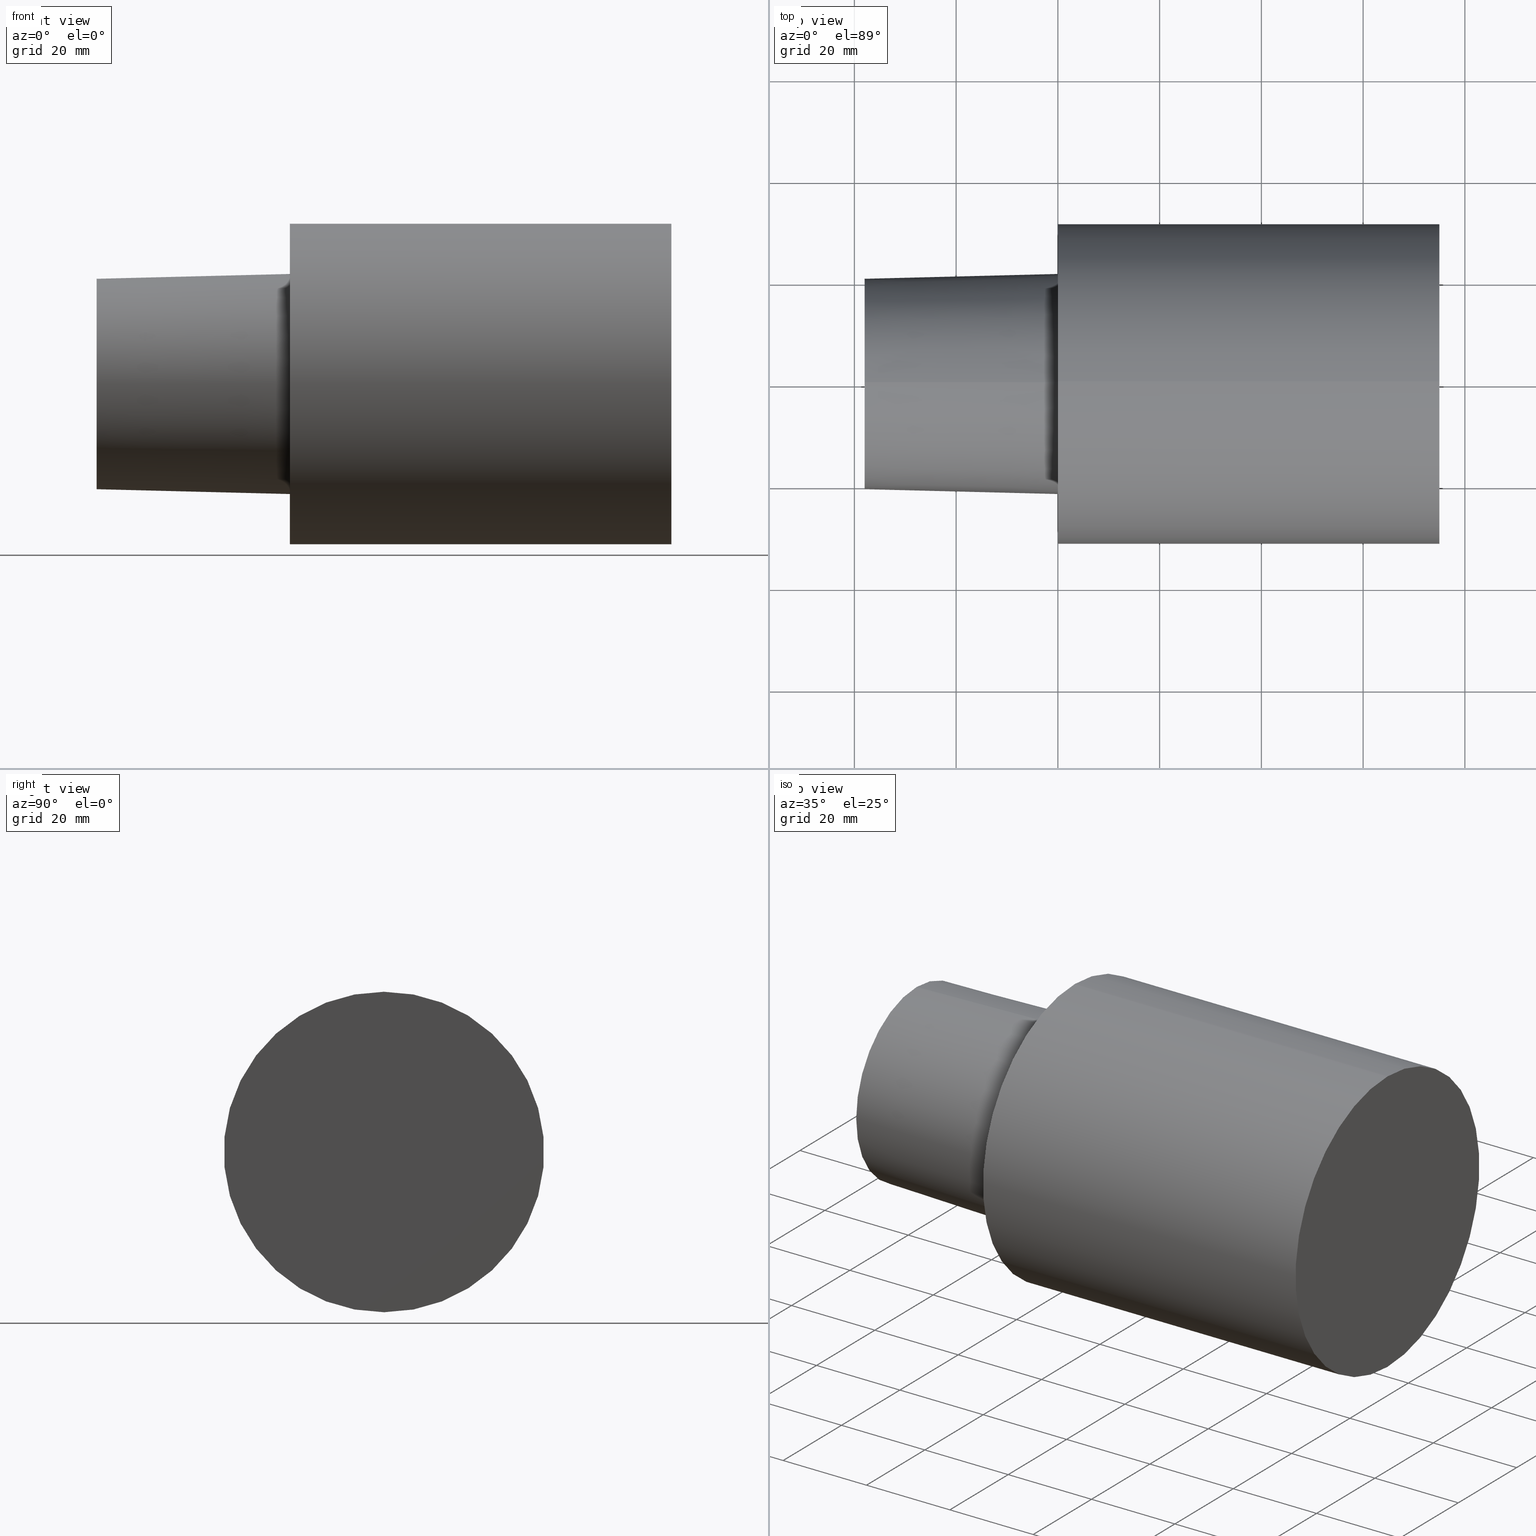
[diagram: canonical four-view strip — front | top / right | iso, engineering-drawing reading convention]
A machine part, canonical four-view strip (front | top / right | iso — engineering-drawing reading convention). The complete STEP part file that produces these views, byte-faithful:
ISO-10303-21;
HEADER;
FILE_DESCRIPTION (( 'STEP AP203' ),
    '1' );
FILE_NAME ('C6-F63-75.stp',
    '2022-03-11T15:30:43',
    ( '' ),
    ( '' ),
    'SwSTEP 2.0',
    'SolidWorks 2021',
    '' );
FILE_SCHEMA (( 'CONFIG_CONTROL_DESIGN' ));
ENDSEC;

DATA;
#1 = PLANE ( 'NONE',  #87 ) ;
#2 = DIRECTION ( 'NONE',  ( -1.000000000000000000, 0.000000000000000000, 0.000000000000000000 ) ) ;
#3 = AXIS2_PLACEMENT_3D ( 'NONE', #57, #2, #179 ) ;
#4 = APPROVAL_PERSON_ORGANIZATION ( #247, #237, #167 ) ;
#5 = DIRECTION ( 'NONE',  ( 0.000000000000000000, 0.000000000000000000, 1.000000000000000000 ) ) ;
#6 =( NAMED_UNIT ( * ) PLANE_ANGLE_UNIT ( ) SI_UNIT ( $, .RADIAN. ) );
#7 = CARTESIAN_POINT ( 'NONE',  ( -37.99999996124000035, 0.000000000000000000, 0.000000000000000000 ) ) ;
#8 = AXIS2_PLACEMENT_3D ( 'NONE', #176, #130, #236 ) ;
#9 = CARTESIAN_POINT ( 'NONE',  ( 74.99999992349999900, 0.000000000000000000, 31.49999996787000001 ) ) ;
#10 = APPROVAL_PERSON_ORGANIZATION ( #137, #125, #217 ) ;
#11 = DIRECTION ( 'NONE',  ( -1.000000000000000000, 0.000000000000000000, 0.000000000000000000 ) ) ;
#12 = EDGE_LOOP ( 'NONE', ( #73, #96, #190, #225 ) ) ;
#13 = EDGE_LOOP ( 'NONE', ( #126, #184 ) ) ;
#14 = COORDINATED_UNIVERSAL_TIME_OFFSET ( 6, 0, .BEHIND. ) ;
#15 = AXIS2_PLACEMENT_3D ( 'NONE', #101, #194, #216 ) ;
#16 = ORIENTED_EDGE ( 'NONE', *, *, #199, .F. ) ;
#17 = EDGE_CURVE ( 'NONE', #248, #69, #107, .T. ) ;
#18 = DESIGN_CONTEXT ( 'detailed design', #152, 'design' ) ;
#19 = DIRECTION ( 'NONE',  ( -1.000000000000000000, 0.000000000000000000, 0.000000000000000000 ) ) ;
#20 = DIRECTION ( 'NONE',  ( -1.000000000000000000, 0.000000000000000000, 0.000000000000000000 ) ) ;
#21 = LINE ( 'NONE', #100, #189 ) ;
#22 = FACE_BOUND ( 'NONE', #13, .T. ) ;
#23 = DIRECTION ( 'NONE',  ( -1.000000000000000000, 0.000000000000000000, 0.000000000000000000 ) ) ;
#24 = CC_DESIGN_DATE_AND_TIME_ASSIGNMENT ( #181, #203, ( #157 ) ) ;
#25 =( GEOMETRIC_REPRESENTATION_CONTEXT ( 3 ) GLOBAL_UNCERTAINTY_ASSIGNED_CONTEXT ( ( #80 ) ) GLOBAL_UNIT_ASSIGNED_CONTEXT ( ( #238, #6, #200 ) ) REPRESENTATION_CONTEXT ( 'NONE', 'WORKASPACE' ) );
#26 = DIRECTION ( 'NONE',  ( 1.000000000000000000, 0.000000000000000000, 0.000000000000000000 ) ) ;
#27 = ADVANCED_BREP_SHAPE_REPRESENTATION ( 'C6-F63-75', ( #232, #165 ), #25 ) ;
#28 = CALENDAR_DATE ( 2022, 11, 3 ) ;
#29 = CIRCLE ( 'NONE', #38, 31.49999996787000001 ) ;
#30 = CC_DESIGN_PERSON_AND_ORGANIZATION_ASSIGNMENT ( #141, #45, ( #95 ) ) ;
#31 = CARTESIAN_POINT ( 'NONE',  ( -37.99999996124000035, 0.000000000000000000, 0.000000000000000000 ) ) ;
#32 = VERTEX_POINT ( 'NONE', #88 ) ;
#33 = ADVANCED_FACE ( 'NONE', ( #246 ), #224, .T. ) ;
#34 = ORIENTED_EDGE ( 'NONE', *, *, #41, .F. ) ;
#35 = CARTESIAN_POINT ( 'NONE',  ( 0.000000000000000000, 0.000000000000000000, 0.000000000000000000 ) ) ;
#36 = DIRECTION ( 'NONE',  ( 1.000000000000000000, 0.000000000000000000, 0.000000000000000000 ) ) ;
#37 = DIRECTION ( 'NONE',  ( 0.000000000000000000, 0.000000000000000000, 1.000000000000000000 ) ) ;
#38 = AXIS2_PLACEMENT_3D ( 'NONE', #35, #102, #171 ) ;
#39 = DIRECTION ( 'NONE',  ( -1.000000000000000000, 0.000000000000000000, 0.000000000000000000 ) ) ;
#40 = DIRECTION ( 'NONE',  ( 0.000000000000000000, 0.000000000000000000, 1.000000000000000000 ) ) ;
#41 = EDGE_CURVE ( 'NONE', #209, #32, #56, .T. ) ;
#42 = DATE_AND_TIME ( #182, #173 ) ;
#43 = CIRCLE ( 'NONE', #252, 21.63061196907898065 ) ;
#44 = DIRECTION ( 'NONE',  ( 0.000000000000000000, 0.000000000000000000, 1.000000000000000000 ) ) ;
#45 = PERSON_AND_ORGANIZATION_ROLE ( 'classification_officer' ) ;
#46 = CALENDAR_DATE ( 2022, 11, 3 ) ;
#47 = AXIS2_PLACEMENT_3D ( 'NONE', #230, #192, #213 ) ;
#48 = ADVANCED_FACE ( 'NONE', ( #22, #75 ), #118, .F. ) ;
#49 = ORIENTED_EDGE ( 'NONE', *, *, #112, .T. ) ;
#50 = ORIENTED_EDGE ( 'NONE', *, *, #222, .T. ) ;
#51 = AXIS2_PLACEMENT_3D ( 'NONE', #117, #39, #5 ) ;
#52 = CC_DESIGN_SECURITY_CLASSIFICATION ( #95, ( #84 ) ) ;
#53 = ORIENTED_EDGE ( 'NONE', *, *, #144, .F. ) ;
#54 = CARTESIAN_POINT ( 'NONE',  ( 0.000000000000000000, 0.000000000000000000, 0.000000000000000000 ) ) ;
#55 = PRODUCT_RELATED_PRODUCT_CATEGORY ( 'detail', '', ( #205 ) ) ;
#56 = LINE ( 'NONE', #251, #59 ) ;
#57 = CARTESIAN_POINT ( 'NONE',  ( -37.99999996124000035, 0.000000000000000000, 0.000000000000000000 ) ) ;
#58 = DIRECTION ( 'NONE',  ( -1.000000000000000000, 0.000000000000000000, 0.000000000000000000 ) ) ;
#59 = VECTOR ( 'NONE', #23, 1000.000000000000000 ) ;
#60 = DIRECTION ( 'NONE',  ( 0.000000000000000000, 0.000000000000000000, 1.000000000000000000 ) ) ;
#61 = PERSON_AND_ORGANIZATION_ROLE ( 'design_owner' ) ;
#62 = MECHANICAL_CONTEXT ( 'NONE', #138, 'mechanical' ) ;
#63 = AXIS2_PLACEMENT_3D ( 'NONE', #153, #36, #99 ) ;
#64 = CALENDAR_DATE ( 2022, 11, 3 ) ;
#65 = SECURITY_CLASSIFICATION_LEVEL ( 'unclassified' ) ;
#66 = APPROVAL_DATE_TIME ( #158, #68 ) ;
#67 = CONICAL_SURFACE ( 'NONE', #185, 21.63061196907898065, 0.02499698951949481940 ) ;
#68 = APPROVAL ( #85, 'UNSPECIFIED' ) ;
#69 = VERTEX_POINT ( 'NONE', #154 ) ;
#70 = ORIENTED_EDGE ( 'NONE', *, *, #177, .T. ) ;
#71 = ADVANCED_FACE ( 'NONE', ( #114 ), #202, .T. ) ;
#72 = EDGE_LOOP ( 'NONE', ( #53, #149 ) ) ;
#73 = ORIENTED_EDGE ( 'NONE', *, *, #249, .F. ) ;
#74 = PLANE ( 'NONE',  #15 ) ;
#75 = FACE_OUTER_BOUND ( 'NONE', #211, .T. ) ;
#76 = DIRECTION ( 'NONE',  ( -1.000000000000000000, 0.000000000000000000, 0.000000000000000000 ) ) ;
#77 = ADVANCED_FACE ( 'NONE', ( #131 ), #214, .T. ) ;
#78 = FACE_OUTER_BOUND ( 'NONE', #12, .T. ) ;
#79 = AXIS2_PLACEMENT_3D ( 'NONE', #31, #188, #151 ) ;
#80 = UNCERTAINTY_MEASURE_WITH_UNIT (LENGTH_MEASURE( 1.000000000000000082E-05 ), #238, 'distance_accuracy_value', 'NONE');
#81 = PERSON_AND_ORGANIZATION ( #145, #140 ) ;
#82 = CC_DESIGN_PERSON_AND_ORGANIZATION_ASSIGNMENT ( #198, #183, ( #84 ) ) ;
#83 = PERSON_AND_ORGANIZATION ( #145, #140 ) ;
#84 = PRODUCT_DEFINITION_FORMATION_WITH_SPECIFIED_SOURCE ( 'ANY', '', #205, .NOT_KNOWN. ) ;
#85 = APPROVAL_STATUS ( 'not_yet_approved' ) ;
#86 = EDGE_CURVE ( 'NONE', #32, #69, #208, .T. ) ;
#87 = AXIS2_PLACEMENT_3D ( 'NONE', #191, #19, #155 ) ;
#88 = CARTESIAN_POINT ( 'NONE',  ( 0.000000000000000000, 3.857637413379370248E-15, -31.49999996787000001 ) ) ;
#89 = APPROVAL_DATE_TIME ( #187, #237 ) ;
#90 = EDGE_CURVE ( 'NONE', #69, #32, #29, .T. ) ;
#91 = EDGE_LOOP ( 'NONE', ( #16, #128, #109, #50 ) ) ;
#92 = SHAPE_DEFINITION_REPRESENTATION ( #186, #27 ) ;
#93 = VERTEX_POINT ( 'NONE', #231 ) ;
#94 = CIRCLE ( 'NONE', #3, 20.68052847366897140 ) ;
#95 = SECURITY_CLASSIFICATION ( '', '', #65 ) ;
#96 = ORIENTED_EDGE ( 'NONE', *, *, #199, .T. ) ;
#97 = DIRECTION ( 'NONE',  ( -1.000000000000000000, 0.000000000000000000, 0.000000000000000000 ) ) ;
#98 = APPROVAL_PERSON_ORGANIZATION ( #105, #68, #103 ) ;
#99 = DIRECTION ( 'NONE',  ( 0.000000000000000000, 0.000000000000000000, -1.000000000000000000 ) ) ;
#100 = CARTESIAN_POINT ( 'NONE',  ( 0.000000000000000000, 2.648985971153096932E-15, 21.63061196907898065 ) ) ;
#101 = CARTESIAN_POINT ( 'NONE',  ( -37.99999996124000035, 20.68052847366897140, 0.000000000000000000 ) ) ;
#102 = DIRECTION ( 'NONE',  ( -1.000000000000000000, 0.000000000000000000, 0.000000000000000000 ) ) ;
#103 = APPROVAL_ROLE ( '' ) ;
#104 = DATE_AND_TIME ( #28, #235 ) ;
#105 = PERSON_AND_ORGANIZATION ( #145, #140 ) ;
#106 = CARTESIAN_POINT ( 'NONE',  ( 0.000000000000000000, 0.000000000000000000, 0.000000000000000000 ) ) ;
#107 = LINE ( 'NONE', #166, #245 ) ;
#108 = CC_DESIGN_PERSON_AND_ORGANIZATION_ASSIGNMENT ( #83, #241, ( #84 ) ) ;
#109 = ORIENTED_EDGE ( 'NONE', *, *, #244, .T. ) ;
#110 = APPROVAL_STATUS ( 'not_yet_approved' ) ;
#111 = VERTEX_POINT ( 'NONE', #156 ) ;
#112 = EDGE_CURVE ( 'NONE', #111, #93, #94, .T. ) ;
#113 = FACE_OUTER_BOUND ( 'NONE', #72, .T. ) ;
#114 = FACE_OUTER_BOUND ( 'NONE', #91, .T. ) ;
#115 = EDGE_CURVE ( 'NONE', #250, #147, #143, .T. ) ;
#116 = AXIS2_PLACEMENT_3D ( 'NONE', #254, #76, #37 ) ;
#117 = CARTESIAN_POINT ( 'NONE',  ( 74.99999992349999900, 0.000000000000000000, 0.000000000000000000 ) ) ;
#118 = PLANE ( 'NONE',  #8 ) ;
#119 = CARTESIAN_POINT ( 'NONE',  ( 0.000000000000000000, 0.000000000000000000, 0.000000000000000000 ) ) ;
#120 = APPROVAL_DATE_TIME ( #42, #125 ) ;
#121 = COORDINATED_UNIVERSAL_TIME_OFFSET ( 6, 0, .BEHIND. ) ;
#122 = COORDINATED_UNIVERSAL_TIME_OFFSET ( 6, 0, .BEHIND. ) ;
#123 = APPROVAL_STATUS ( 'not_yet_approved' ) ;
#124 = ORIENTED_EDGE ( 'NONE', *, *, #90, .F. ) ;
#125 = APPROVAL ( #123, 'UNSPECIFIED' ) ;
#126 = ORIENTED_EDGE ( 'NONE', *, *, #222, .F. ) ;
#127 = CC_DESIGN_APPROVAL ( #68, ( #157 ) ) ;
#128 = ORIENTED_EDGE ( 'NONE', *, *, #112, .F. ) ;
#129 = ORIENTED_EDGE ( 'NONE', *, *, #41, .T. ) ;
#130 = DIRECTION ( 'NONE',  ( 1.000000000000000000, 0.000000000000000000, 0.000000000000000000 ) ) ;
#131 = FACE_OUTER_BOUND ( 'NONE', #226, .T. ) ;
#132 = CC_DESIGN_PERSON_AND_ORGANIZATION_ASSIGNMENT ( #164, #142, ( #157 ) ) ;
#133 = CARTESIAN_POINT ( 'NONE',  ( 0.000000000000000000, 0.000000000000000000, 0.000000000000000000 ) ) ;
#134 = LOCAL_TIME ( 9, 30, 43.00000000000000000, #14 ) ;
#135 = LINE ( 'NONE', #195, #243 ) ;
#136 = FACE_OUTER_BOUND ( 'NONE', #207, .T. ) ;
#137 = PERSON_AND_ORGANIZATION ( #145, #140 ) ;
#138 = APPLICATION_CONTEXT ( 'configuration controlled 3d designs of mechanical parts and assemblies' ) ;
#139 = APPLICATION_PROTOCOL_DEFINITION ( 'international standard', 'config_control_design', 1994, #152 ) ;
#140 = ORGANIZATION ( 'UNSPECIFIED', 'UNSPECIFIED', '' ) ;
#141 = PERSON_AND_ORGANIZATION ( #145, #140 ) ;
#142 = PERSON_AND_ORGANIZATION_ROLE ( 'creator' ) ;
#143 = CIRCLE ( 'NONE', #172, 21.63061196907898065 ) ;
#144 = EDGE_CURVE ( 'NONE', #248, #209, #234, .T. ) ;
#145 = PERSON ( 'UNSPECIFIED', 'UNSPECIFIED', 'UNSPECIFIED', ('UNSPECIFIED'), ('UNSPECIFIED'), ('UNSPECIFIED') ) ;
#146 = ORIENTED_EDGE ( 'NONE', *, *, #86, .F. ) ;
#147 = VERTEX_POINT ( 'NONE', #174 ) ;
#148 = CIRCLE ( 'NONE', #160, 20.68052847366897140 ) ;
#149 = ORIENTED_EDGE ( 'NONE', *, *, #177, .F. ) ;
#150 = ORIENTED_EDGE ( 'NONE', *, *, #86, .T. ) ;
#151 = DIRECTION ( 'NONE',  ( 0.000000000000000000, 0.000000000000000000, 1.000000000000000000 ) ) ;
#152 = APPLICATION_CONTEXT ( 'configuration controlled 3d designs of mechanical parts and assemblies' ) ;
#153 = CARTESIAN_POINT ( 'NONE',  ( 0.000000000000000000, 0.000000000000000000, 0.000000000000000000 ) ) ;
#154 = CARTESIAN_POINT ( 'NONE',  ( 0.000000000000000000, 0.000000000000000000, 31.49999996787000001 ) ) ;
#155 = DIRECTION ( 'NONE',  ( 0.000000000000000000, 0.000000000000000000, 1.000000000000000000 ) ) ;
#156 = CARTESIAN_POINT ( 'NONE',  ( -37.99999996124000035, 0.000000000000000000, -20.68052847366897140 ) ) ;
#157 = PRODUCT_DEFINITION ( 'UNKNOWN', '', #84, #18 ) ;
#158 = DATE_AND_TIME ( #46, #239 ) ;
#159 = DIRECTION ( 'NONE',  ( 0.9996875915253454759, 0.000000000000000000, -0.02499438637482059161 ) ) ;
#160 = AXIS2_PLACEMENT_3D ( 'NONE', #7, #201, #44 ) ;
#161 = DIRECTION ( 'NONE',  ( 0.000000000000000000, 0.000000000000000000, 1.000000000000000000 ) ) ;
#162 = ADVANCED_FACE ( 'NONE', ( #136 ), #74, .F. ) ;
#163 = COORDINATED_UNIVERSAL_TIME_OFFSET ( 6, 0, .BEHIND. ) ;
#164 = PERSON_AND_ORGANIZATION ( #145, #140 ) ;
#165 = AXIS2_PLACEMENT_3D ( 'NONE', #106, #161, #26 ) ;
#166 = CARTESIAN_POINT ( 'NONE',  ( -37.99999996124000035, 0.000000000000000000, 31.49999996787000001 ) ) ;
#167 = APPROVAL_ROLE ( '' ) ;
#168 = ORIENTED_EDGE ( 'NONE', *, *, #90, .T. ) ;
#169 = ORIENTED_EDGE ( 'NONE', *, *, #144, .T. ) ;
#170 = ADVANCED_FACE ( 'NONE', ( #78 ), #67, .T. ) ;
#171 = DIRECTION ( 'NONE',  ( 0.000000000000000000, 0.000000000000000000, 1.000000000000000000 ) ) ;
#172 = AXIS2_PLACEMENT_3D ( 'NONE', #133, #97, #60 ) ;
#173 = LOCAL_TIME ( 9, 30, 43.00000000000000000, #163 ) ;
#174 = CARTESIAN_POINT ( 'NONE',  ( 0.000000000000000000, 0.000000000000000000, -21.63061196907898065 ) ) ;
#175 = DIRECTION ( 'NONE',  ( 0.9996875915253454759, 3.060929527057623083E-18, 0.02499438637482059161 ) ) ;
#176 = CARTESIAN_POINT ( 'NONE',  ( 0.000000000000000000, 31.49999996787000001, 0.000000000000000000 ) ) ;
#177 = EDGE_CURVE ( 'NONE', #209, #248, #178, .T. ) ;
#178 = CIRCLE ( 'NONE', #47, 31.49999996787000001 ) ;
#179 = DIRECTION ( 'NONE',  ( 0.000000000000000000, 0.000000000000000000, 1.000000000000000000 ) ) ;
#180 = CARTESIAN_POINT ( 'NONE',  ( 0.000000000000000000, 2.648985971153096932E-15, 21.63061196907898065 ) ) ;
#181 = DATE_AND_TIME ( #64, #193 ) ;
#182 = CALENDAR_DATE ( 2022, 11, 3 ) ;
#183 = PERSON_AND_ORGANIZATION_ROLE ( 'creator' ) ;
#184 = ORIENTED_EDGE ( 'NONE', *, *, #115, .F. ) ;
#185 = AXIS2_PLACEMENT_3D ( 'NONE', #119, #196, #212 ) ;
#186 = PRODUCT_DEFINITION_SHAPE ( 'NONE', 'NONE',  #157 ) ;
#187 = DATE_AND_TIME ( #227, #134 ) ;
#188 = DIRECTION ( 'NONE',  ( -1.000000000000000000, 0.000000000000000000, 0.000000000000000000 ) ) ;
#189 = VECTOR ( 'NONE', #175, 1000.000000000000114 ) ;
#190 = ORIENTED_EDGE ( 'NONE', *, *, #115, .T. ) ;
#191 = CARTESIAN_POINT ( 'NONE',  ( 74.99999992349999900, 0.000000000000000000, 0.000000000000000000 ) ) ;
#192 = DIRECTION ( 'NONE',  ( -1.000000000000000000, 0.000000000000000000, 0.000000000000000000 ) ) ;
#193 = LOCAL_TIME ( 9, 30, 43.00000000000000000, #121 ) ;
#194 = DIRECTION ( 'NONE',  ( 1.000000000000000000, 0.000000000000000000, 0.000000000000000000 ) ) ;
#195 = CARTESIAN_POINT ( 'NONE',  ( 0.000000000000000000, 0.000000000000000000, -21.63061196907898065 ) ) ;
#196 = DIRECTION ( 'NONE',  ( 1.000000000000000000, 0.000000000000000000, 0.000000000000000000 ) ) ;
#197 = CLOSED_SHELL ( 'NONE', ( #77, #48, #71, #162, #218, #170, #33 ) ) ;
#198 = PERSON_AND_ORGANIZATION ( #145, #140 ) ;
#199 = EDGE_CURVE ( 'NONE', #93, #250, #21, .T. ) ;
#200 =( NAMED_UNIT ( * ) SI_UNIT ( $, .STERADIAN. ) SOLID_ANGLE_UNIT ( ) );
#201 = DIRECTION ( 'NONE',  ( -1.000000000000000000, 0.000000000000000000, 0.000000000000000000 ) ) ;
#202 = CONICAL_SURFACE ( 'NONE', #63, 21.63061196907898065, 0.02499698951949481940 ) ;
#203 = DATE_TIME_ROLE ( 'creation_date' ) ;
#204 = CC_DESIGN_PERSON_AND_ORGANIZATION_ASSIGNMENT ( #81, #61, ( #205 ) ) ;
#205 = PRODUCT ( 'C6-F63-75', 'C6-F63-75', '', ( #62 ) ) ;
#206 = ORIENTED_EDGE ( 'NONE', *, *, #17, .F. ) ;
#207 = EDGE_LOOP ( 'NONE', ( #49, #223 ) ) ;
#208 = CIRCLE ( 'NONE', #240, 31.49999996787000001 ) ;
#209 = VERTEX_POINT ( 'NONE', #229 ) ;
#210 = ORIENTED_EDGE ( 'NONE', *, *, #17, .T. ) ;
#211 = EDGE_LOOP ( 'NONE', ( #168, #150 ) ) ;
#212 = DIRECTION ( 'NONE',  ( 0.000000000000000000, 0.000000000000000000, -1.000000000000000000 ) ) ;
#213 = DIRECTION ( 'NONE',  ( 0.000000000000000000, 0.000000000000000000, 1.000000000000000000 ) ) ;
#214 = CYLINDRICAL_SURFACE ( 'NONE', #116, 31.49999996787000001 ) ;
#215 = DIRECTION ( 'NONE',  ( 0.000000000000000000, 0.000000000000000000, 1.000000000000000000 ) ) ;
#216 = DIRECTION ( 'NONE',  ( 0.000000000000000000, 1.000000000000000000, 0.000000000000000000 ) ) ;
#217 = APPROVAL_ROLE ( '' ) ;
#218 = ADVANCED_FACE ( 'NONE', ( #113 ), #1, .F. ) ;
#219 = CC_DESIGN_APPROVAL ( #237, ( #95 ) ) ;
#220 = COORDINATED_UNIVERSAL_TIME_OFFSET ( 6, 0, .BEHIND. ) ;
#221 = APPLICATION_PROTOCOL_DEFINITION ( 'international standard', 'config_control_design', 1994, #138 ) ;
#222 = EDGE_CURVE ( 'NONE', #147, #250, #43, .T. ) ;
#223 = ORIENTED_EDGE ( 'NONE', *, *, #249, .T. ) ;
#224 = CYLINDRICAL_SURFACE ( 'NONE', #79, 31.49999996787000001 ) ;
#225 = ORIENTED_EDGE ( 'NONE', *, *, #244, .F. ) ;
#226 = EDGE_LOOP ( 'NONE', ( #34, #70, #210, #146 ) ) ;
#227 = CALENDAR_DATE ( 2022, 11, 3 ) ;
#228 = EDGE_LOOP ( 'NONE', ( #169, #129, #124, #206 ) ) ;
#229 = CARTESIAN_POINT ( 'NONE',  ( 74.99999992349999900, 3.857637413379370248E-15, -31.49999996787000001 ) ) ;
#230 = CARTESIAN_POINT ( 'NONE',  ( 74.99999992349999900, 0.000000000000000000, 0.000000000000000000 ) ) ;
#231 = CARTESIAN_POINT ( 'NONE',  ( -37.99999996124000035, 2.590810135574270981E-15, 20.68052847366897140 ) ) ;
#232 = MANIFOLD_SOLID_BREP ( 'Scale1', #197 ) ;
#233 = CARTESIAN_POINT ( 'NONE',  ( 0.000000000000000000, 0.000000000000000000, 0.000000000000000000 ) ) ;
#234 = CIRCLE ( 'NONE', #51, 31.49999996787000001 ) ;
#235 = LOCAL_TIME ( 9, 30, 43.00000000000000000, #122 ) ;
#236 = DIRECTION ( 'NONE',  ( 0.000000000000000000, 1.000000000000000000, 0.000000000000000000 ) ) ;
#237 = APPROVAL ( #110, 'UNSPECIFIED' ) ;
#238 =( LENGTH_UNIT ( ) NAMED_UNIT ( * ) SI_UNIT ( .MILLI., .METRE. ) );
#239 = LOCAL_TIME ( 9, 30, 43.00000000000000000, #220 ) ;
#240 = AXIS2_PLACEMENT_3D ( 'NONE', #54, #20, #40 ) ;
#241 = PERSON_AND_ORGANIZATION_ROLE ( 'design_supplier' ) ;
#242 = DATE_TIME_ROLE ( 'classification_date' ) ;
#243 = VECTOR ( 'NONE', #159, 1000.000000000000114 ) ;
#244 = EDGE_CURVE ( 'NONE', #111, #147, #135, .T. ) ;
#245 = VECTOR ( 'NONE', #11, 1000.000000000000000 ) ;
#246 = FACE_OUTER_BOUND ( 'NONE', #228, .T. ) ;
#247 = PERSON_AND_ORGANIZATION ( #145, #140 ) ;
#248 = VERTEX_POINT ( 'NONE', #9 ) ;
#249 = EDGE_CURVE ( 'NONE', #93, #111, #148, .T. ) ;
#250 = VERTEX_POINT ( 'NONE', #180 ) ;
#251 = CARTESIAN_POINT ( 'NONE',  ( -37.99999996124000035, 3.857637413379370248E-15, -31.49999996787000001 ) ) ;
#252 = AXIS2_PLACEMENT_3D ( 'NONE', #233, #58, #215 ) ;
#253 = CC_DESIGN_APPROVAL ( #125, ( #84 ) ) ;
#254 = CARTESIAN_POINT ( 'NONE',  ( -37.99999996124000035, 0.000000000000000000, 0.000000000000000000 ) ) ;
#255 = CC_DESIGN_DATE_AND_TIME_ASSIGNMENT ( #104, #242, ( #95 ) ) ;
ENDSEC;
END-ISO-10303-21;
